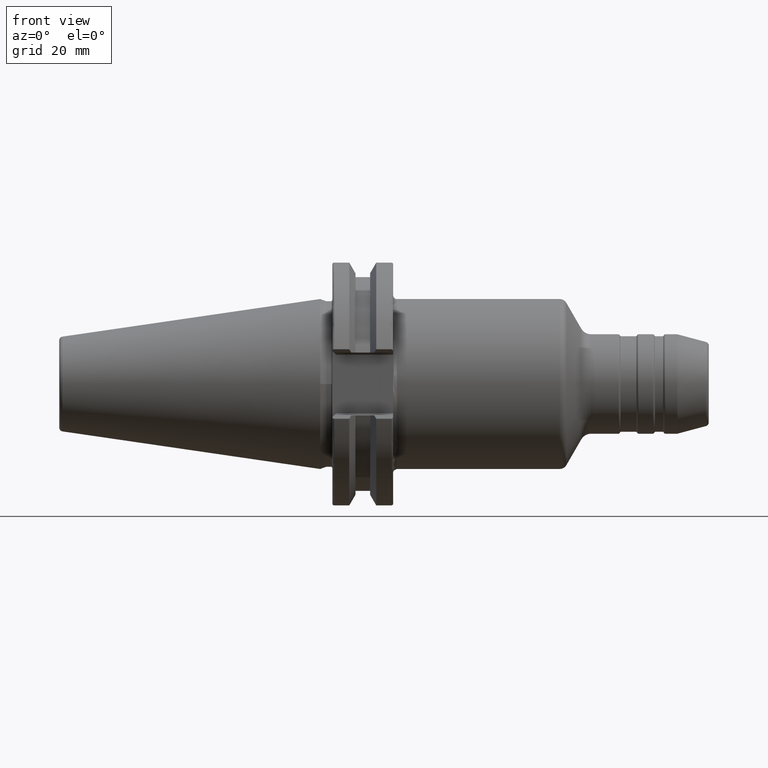
[diagram: clean part render]
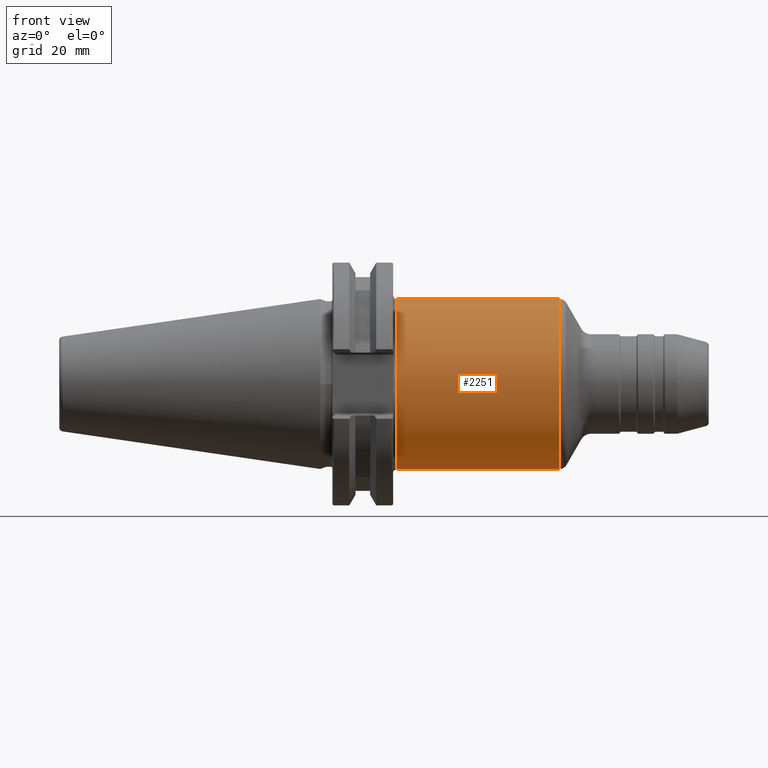
[diagram: same view with one face highlighted and labeled with its STEP entity id]
A machine part, front view. The second image highlights one B-rep face of the part: STEP entity #2251.
In plain terms, the highlighted cylindrical surface (partial cylindrical patch) has radius 22.225 mm, axis along (1, 0, 0).
Its self-contained STEP definition (entity closure, byte-faithful):
#227=CARTESIAN_POINT('',(2.0075E1,0.E0,0.E0));
#228=DIRECTION('',(-1.E0,0.E0,0.E0));
#229=DIRECTION('',(0.E0,0.E0,-1.E0));
#230=AXIS2_PLACEMENT_3D('',#227,#228,#229);
#237=DIRECTION('',(-1.E0,0.E0,0.E0));
#238=VECTOR('',#237,4.256924322835E1);
#239=CARTESIAN_POINT('',(6.264424322835E1,0.E0,-2.2225E1));
#240=LINE('',#239,#238);
#241=DIRECTION('',(-1.E0,0.E0,0.E0));
#242=VECTOR('',#241,4.256924322835E1);
#243=CARTESIAN_POINT('',(6.264424322835E1,0.E0,2.2225E1));
#244=LINE('',#243,#242);
#245=CARTESIAN_POINT('',(6.264424322835E1,0.E0,0.E0));
#246=DIRECTION('',(-1.E0,0.E0,0.E0));
#247=DIRECTION('',(0.E0,0.E0,-1.E0));
#248=AXIS2_PLACEMENT_3D('',#245,#246,#247);
#1786=CARTESIAN_POINT('',(6.264424322835E1,0.E0,-2.2225E1));
#1787=VERTEX_POINT('',#1786);
#1788=CARTESIAN_POINT('',(2.0075E1,0.E0,-2.2225E1));
#1789=VERTEX_POINT('',#1788);
#1844=CARTESIAN_POINT('',(6.264424322835E1,0.E0,2.2225E1));
#1845=VERTEX_POINT('',#1844);
#1846=CARTESIAN_POINT('',(2.0075E1,0.E0,2.2225E1));
#1847=VERTEX_POINT('',#1846);
#2237=CARTESIAN_POINT('',(1.49475E1,0.E0,0.E0));
#2238=DIRECTION('',(1.E0,0.E0,0.E0));
#2239=DIRECTION('',(0.E0,0.E0,1.E0));
#2240=AXIS2_PLACEMENT_3D('',#2237,#2238,#2239);
#2241=CYLINDRICAL_SURFACE('',#2240,2.2225E1);
#2243=ORIENTED_EDGE('',*,*,#2242,.T.);
#2244=ORIENTED_EDGE('',*,*,#2228,.T.);
#2246=ORIENTED_EDGE('',*,*,#2245,.F.);
#2248=ORIENTED_EDGE('',*,*,#2247,.F.);
#2249=EDGE_LOOP('',(#2243,#2244,#2246,#2248));
#2250=FACE_OUTER_BOUND('',#2249,.F.);
#2251=ADVANCED_FACE('',(#2250),#2241,.T.);
#231=CIRCLE('',#230,2.2225E1);
#249=CIRCLE('',#248,2.2225E1);
#2228=EDGE_CURVE('',#1789,#1847,#231,.T.);
#2242=EDGE_CURVE('',#1787,#1789,#240,.T.);
#2245=EDGE_CURVE('',#1845,#1847,#244,.T.);
#2247=EDGE_CURVE('',#1787,#1845,#249,.T.);